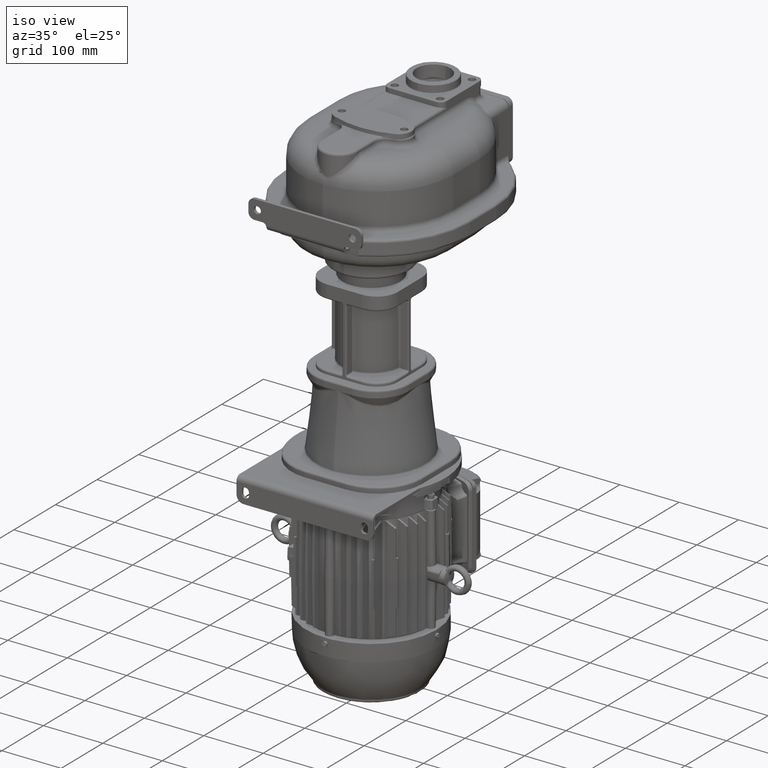
[diagram: clean part render]
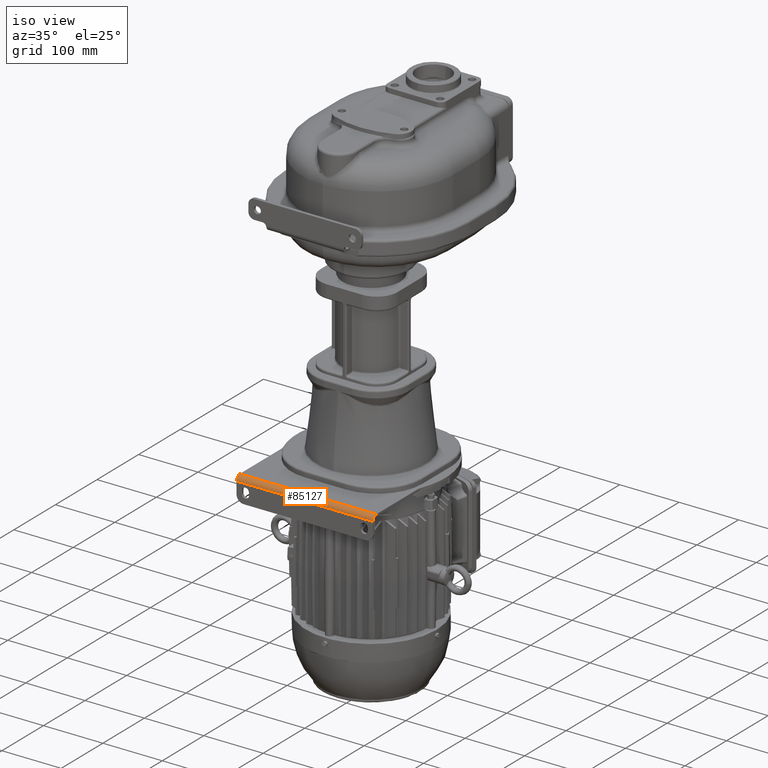
[diagram: same view with one face highlighted and labeled with its STEP entity id]
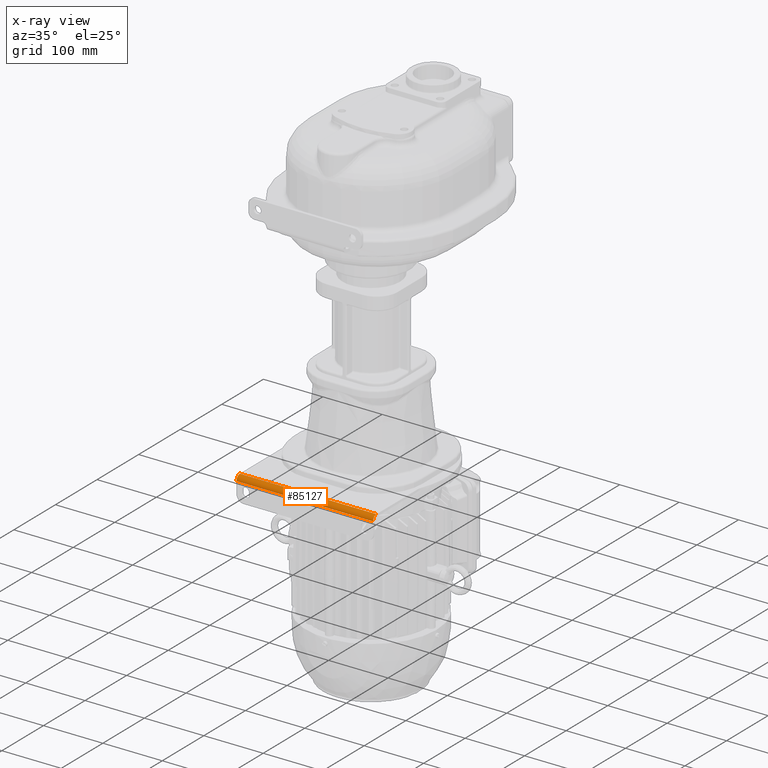
[diagram: x-ray of the same camera — body ghosted, the highlighted face saturated]
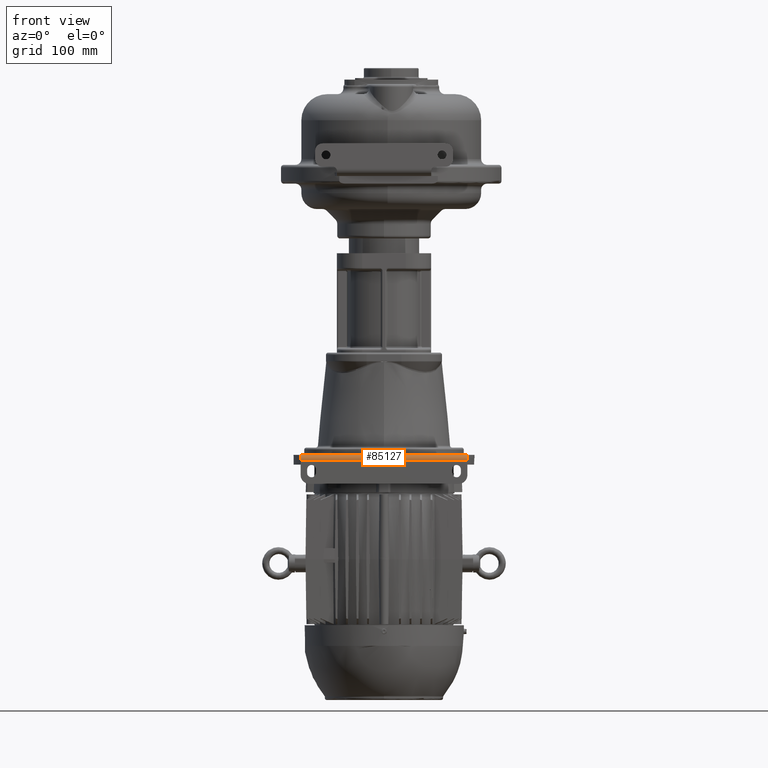
[diagram: same view with one face highlighted and labeled with its STEP entity id]
A machine part, iso view. The second image highlights one B-rep face of the part: STEP entity #85127.
The next image is the same camera in x-ray: the body ghosted, the highlighted face saturated — about 0% of this face is hidden behind the body in this view.
A second angle (front view) of the same face is appended — the face is thin or edge-on in the first view.
In plain terms, the highlighted cylindrical surface (edge-blend (fillet) strip) has radius 8 mm, axis along (-1, 0, 0).
Its self-contained STEP definition (entity closure, byte-faithful):
#31998=DIRECTION('',(1.E0,0.E0,0.E0));
#31999=VECTOR('',#31998,2.3E2);
#32000=CARTESIAN_POINT('',(-1.15E2,-1.834156466122E-14,-4.215E2));
#32001=LINE('',#32000,#31999);
#32002=CARTESIAN_POINT('',(-1.15E2,8.E0,-4.215E2));
#32003=DIRECTION('',(-1.E0,0.E0,0.E0));
#32004=DIRECTION('',(0.E0,-1.E0,0.E0));
#32005=AXIS2_PLACEMENT_3D('',#32002,#32003,#32004);
#32007=DIRECTION('',(1.E0,0.E0,0.E0));
#32008=VECTOR('',#32007,2.3E2);
#32009=CARTESIAN_POINT('',(-1.15E2,8.E0,-4.135E2));
#32010=LINE('',#32009,#32008);
#32011=CARTESIAN_POINT('',(1.15E2,8.E0,-4.215E2));
#32012=DIRECTION('',(-1.E0,0.E0,0.E0));
#32013=DIRECTION('',(0.E0,-1.E0,1.421085471520E-14));
#32014=AXIS2_PLACEMENT_3D('',#32011,#32012,#32013);
#38453=CARTESIAN_POINT('',(1.15E2,-3.466184312321E-14,-4.215E2));
#38454=VERTEX_POINT('',#38453);
#38455=CARTESIAN_POINT('',(-1.15E2,-1.834156466122E-14,-4.215E2));
#38456=VERTEX_POINT('',#38455);
#38494=CARTESIAN_POINT('',(1.15E2,8.E0,-4.135E2));
#38496=VERTEX_POINT('',#38494);
#38501=CARTESIAN_POINT('',(-1.15E2,8.E0,-4.135E2));
#38503=VERTEX_POINT('',#38501);
#85114=CARTESIAN_POINT('',(-1.15E2,8.E0,-4.215E2));
#85115=DIRECTION('',(-1.E0,0.E0,0.E0));
#85116=DIRECTION('',(0.E0,-1.E0,0.E0));
#85117=AXIS2_PLACEMENT_3D('',#85114,#85115,#85116);
#85118=CYLINDRICAL_SURFACE('',#85117,8.E0);
#85120=ORIENTED_EDGE('',*,*,#85119,.F.);
#85121=ORIENTED_EDGE('',*,*,#85104,.T.);
#85122=ORIENTED_EDGE('',*,*,#50969,.T.);
#85124=ORIENTED_EDGE('',*,*,#85123,.F.);
#85125=EDGE_LOOP('',(#85120,#85121,#85122,#85124));
#85126=FACE_OUTER_BOUND('',#85125,.F.);
#85127=ADVANCED_FACE('',(#85126),#85118,.T.);
#32006=CIRCLE('',#32005,8.E0);
#32015=CIRCLE('',#32014,8.E0);
#50969=EDGE_CURVE('',#38503,#38496,#32010,.T.);
#85104=EDGE_CURVE('',#38456,#38503,#32006,.T.);
#85119=EDGE_CURVE('',#38456,#38454,#32001,.T.);
#85123=EDGE_CURVE('',#38454,#38496,#32015,.T.);